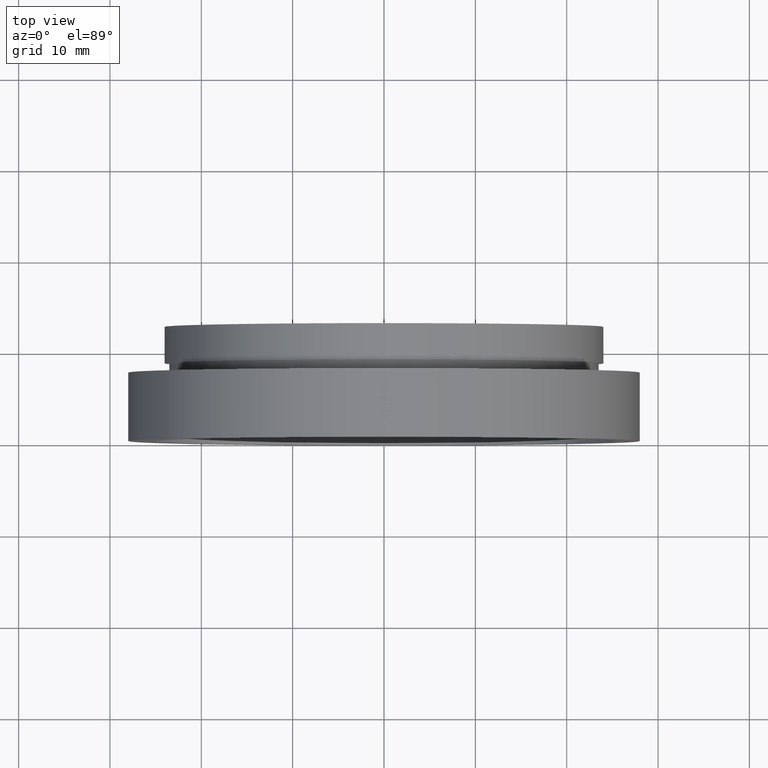
[diagram: clean part render]
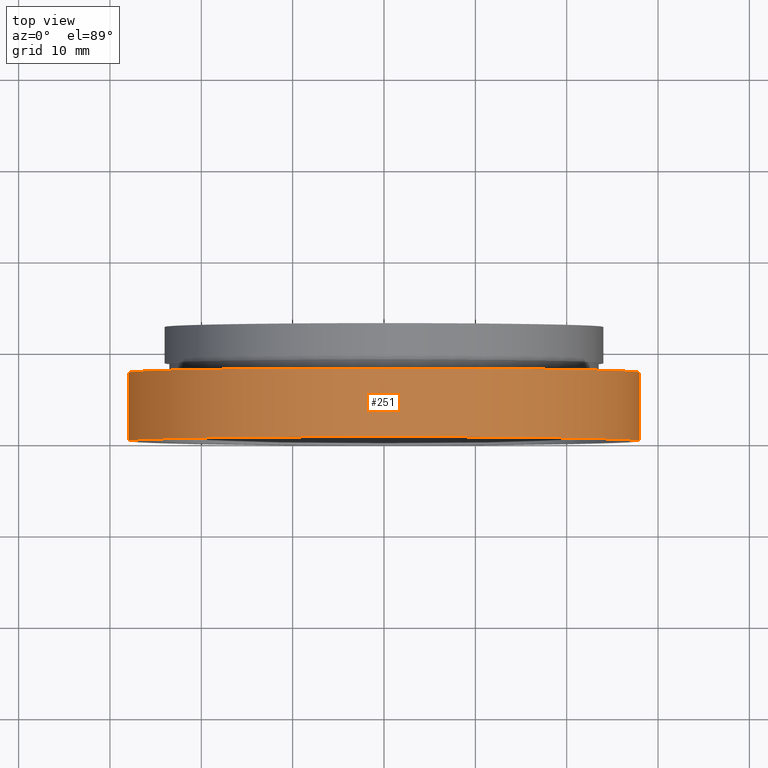
[diagram: same view with one face highlighted and labeled with its STEP entity id]
A machine part, top view. The second image highlights one B-rep face of the part: STEP entity #251.
In plain terms, the highlighted cylindrical surface (partial cylindrical patch) has radius 28 mm, axis along (-0, 1, -0).
Its self-contained STEP definition (entity closure, byte-faithful):
#4 = ORIENTED_EDGE ( 'NONE', *, *, #604, .F. ) ;
#5 = LINE ( 'NONE', #88, #386 ) ;
#6 = CIRCLE ( 'NONE', #237, 28.00000000000000000 ) ;
#16 = EDGE_CURVE ( 'NONE', #84, #619, #5, .T. ) ;
#84 = VERTEX_POINT ( 'NONE', #159 ) ;
#88 = CARTESIAN_POINT ( 'NONE',  ( 27.99999999999999600, 16.88601823708208000, 3.429011037612588900E-015 ) ) ;
#115 = DIRECTION ( 'NONE',  ( -1.224646799147351000E-016, 1.000000000000000000, -0.0000000000000000000 ) ) ;
#118 = DIRECTION ( 'NONE',  ( -1.224646799147351000E-016, 1.000000000000000000, -0.0000000000000000000 ) ) ;
#125 = CARTESIAN_POINT ( 'NONE',  ( 1.149455719078123100E-015, 7.499999999999996400, 0.0000000000000000000 ) ) ;
#130 = ORIENTED_EDGE ( 'NONE', *, *, #215, .F. ) ;
#151 = ORIENTED_EDGE ( 'NONE', *, *, #173, .T. ) ;
#159 = CARTESIAN_POINT ( 'NONE',  ( 28.00000000000000400, -4.043591434103126100E-017, 3.429011037612589700E-015 ) ) ;
#168 = DIRECTION ( 'NONE',  ( -1.000000000000000000, -1.239088197126290800E-016, 0.0000000000000000000 ) ) ;
#173 = EDGE_CURVE ( 'NONE', #473, #84, #282, .T. ) ;
#215 = EDGE_CURVE ( 'NONE', #607, #619, #6, .T. ) ;
#218 = DIRECTION ( 'NONE',  ( -1.224646799147351000E-016, 1.000000000000000000, -0.0000000000000000000 ) ) ;
#237 = AXIS2_PLACEMENT_3D ( 'NONE', #125, #118, #418 ) ;
#251 = ADVANCED_FACE ( 'NONE', ( #278 ), #255, .T. ) ;
#255 = CYLINDRICAL_SURFACE ( 'NONE', #466, 27.99999999999999600 ) ;
#256 = CARTESIAN_POINT ( 'NONE',  ( -27.99999999999999600, 16.88601823708207300, 0.0000000000000000000 ) ) ;
#261 = EDGE_LOOP ( 'NONE', ( #151, #380, #130, #4 ) ) ;
#264 = CARTESIAN_POINT ( 'NONE',  ( 2.067940818438636500E-015, -3.469446951953614200E-015, 0.0000000000000000000 ) ) ;
#273 = DIRECTION ( 'NONE',  ( -1.000000000000000000, -1.224646799147351200E-016, 0.0000000000000000000 ) ) ;
#277 = LINE ( 'NONE', #256, #388 ) ;
#278 = FACE_OUTER_BOUND ( 'NONE', #261, .T. ) ;
#282 = CIRCLE ( 'NONE', #378, 27.99999999999999600 ) ;
#353 = CARTESIAN_POINT ( 'NONE',  ( -28.00000000000000000, 7.499999999999992900, 0.0000000000000000000 ) ) ;
#378 = AXIS2_PLACEMENT_3D ( 'NONE', #264, #115, #273 ) ;
#380 = ORIENTED_EDGE ( 'NONE', *, *, #16, .T. ) ;
#386 = VECTOR ( 'NONE', #434, 1000.000000000000000 ) ;
#388 = VECTOR ( 'NONE', #587, 1000.000000000000000 ) ;
#409 = CARTESIAN_POINT ( 'NONE',  ( 28.00000000000000400, 7.500000000000000000, 3.429011037612589700E-015 ) ) ;
#418 = DIRECTION ( 'NONE',  ( -1.000000000000000000, -1.239088197126290800E-016, 0.0000000000000000000 ) ) ;
#434 = DIRECTION ( 'NONE',  ( -1.224646799147351000E-016, 1.000000000000000000, -0.0000000000000000000 ) ) ;
#466 = AXIS2_PLACEMENT_3D ( 'NONE', #544, #218, #168 ) ;
#473 = VERTEX_POINT ( 'NONE', #580 ) ;
#544 = CARTESIAN_POINT ( 'NONE',  ( 0.0000000000000000000, 16.88601823708207700, 0.0000000000000000000 ) ) ;
#580 = CARTESIAN_POINT ( 'NONE',  ( -27.99999999999999300, -6.898457989566196800E-015, 0.0000000000000000000 ) ) ;
#587 = DIRECTION ( 'NONE',  ( -1.224646799147351000E-016, 1.000000000000000000, -0.0000000000000000000 ) ) ;
#604 = EDGE_CURVE ( 'NONE', #473, #607, #277, .T. ) ;
#607 = VERTEX_POINT ( 'NONE', #353 ) ;
#619 = VERTEX_POINT ( 'NONE', #409 ) ;